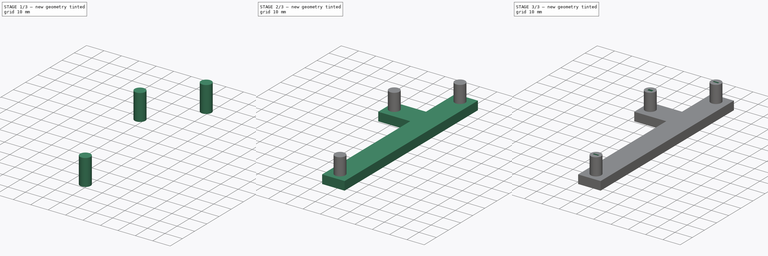
[diagram: build sequence overview — one tinted view per stage of 3, left to right]
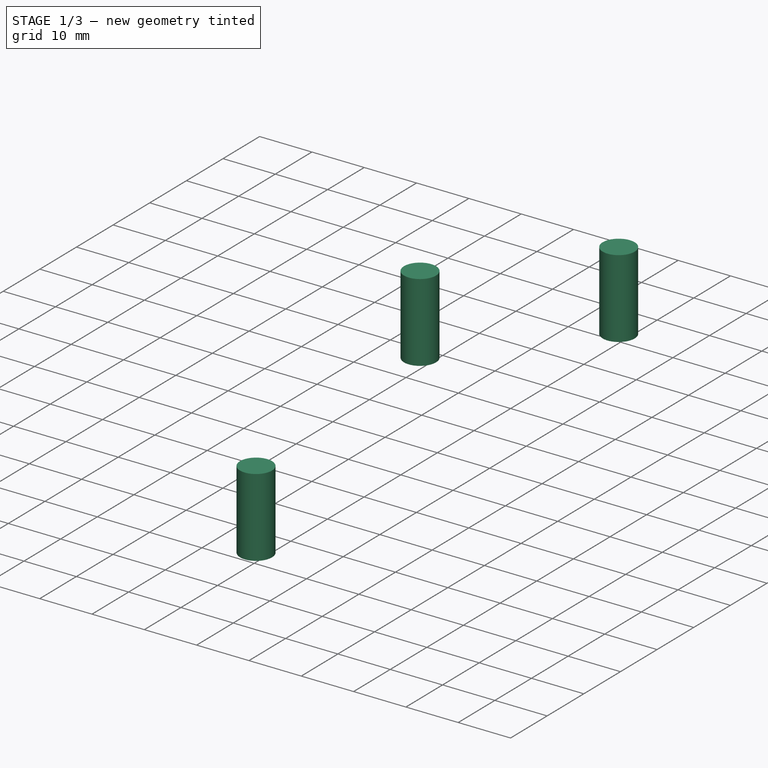
[diagram: stage 1 of 3 — iso view after this stage's code; geometry added in this stage tinted green]
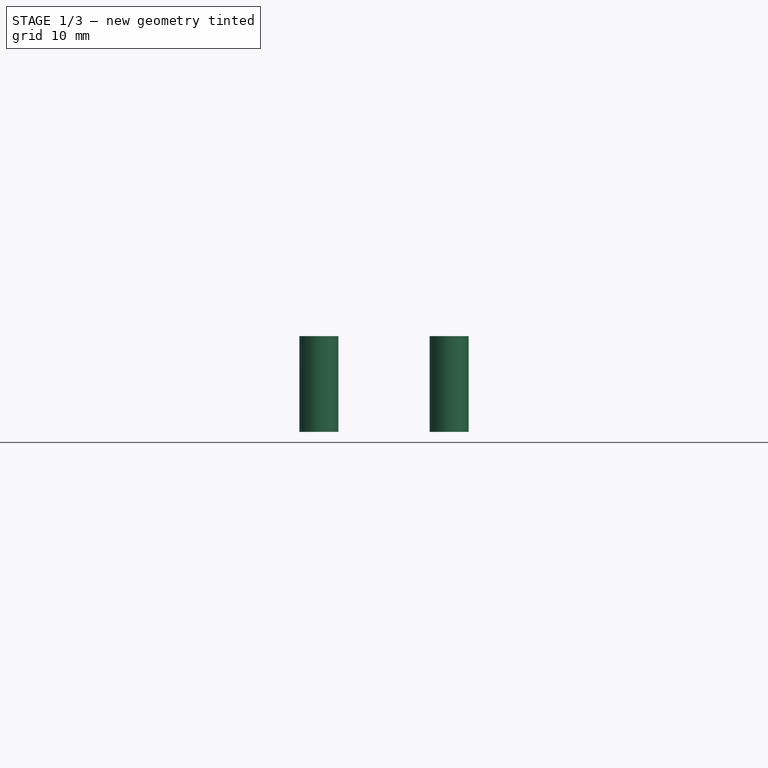
[diagram: stage 1 of 3 — front view after this stage's code; geometry added in this stage tinted green]
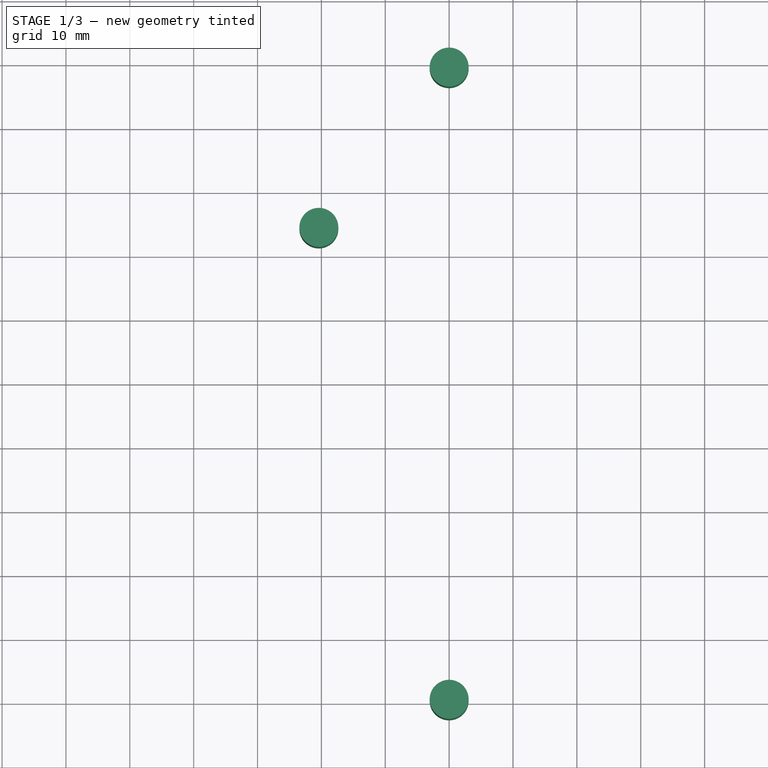
[diagram: stage 1 of 3 — top view after this stage's code; geometry added in this stage tinted green]
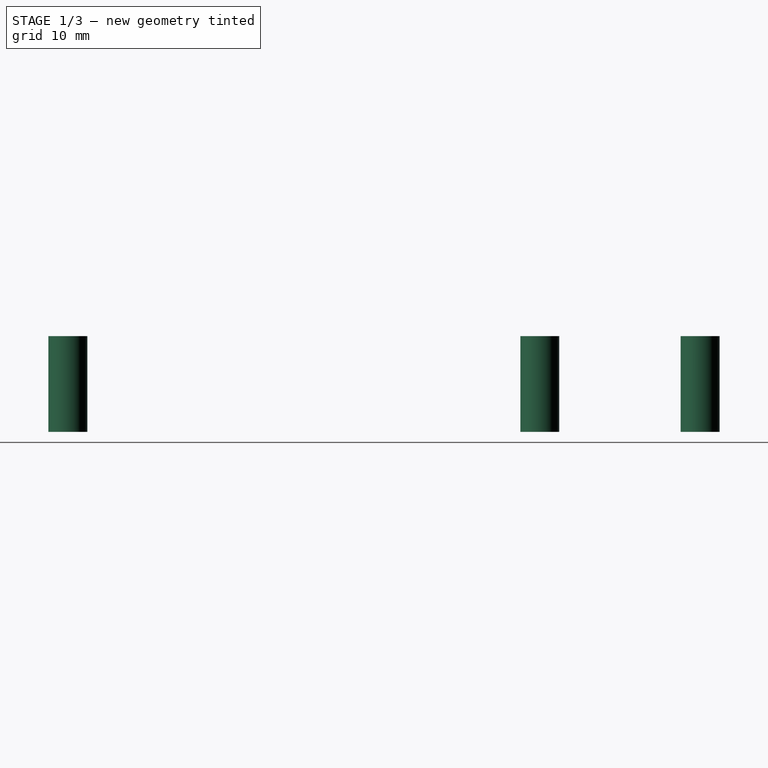
[diagram: stage 1 of 3 — right view after this stage's code; geometry added in this stage tinted green]
FCSTD DOCUMENT  (FreeCAD 0.16R6712 (Git))
Label: Oblig1_opp3
License: All rights reserved
LicenseURL: http://en.wikipedia.org/wiki/All_rights_reserved
objects: Sketcher::SketchObject×3, PartDesign::Pad×3, Part::Cylinder×3, Spreadsheet::Sheet×1, Part::MultiFuse×1, Part::Cut×1
note: 14 computed .brp shape members not serialized (recipe doc carries the construction recipe); baked Part::Feature solids carry a one-line shape summary decoded from their .brp

FEATURE [Part::Cylinder] Cylinder  label="cylinder_plug_1"
  Angle = 360
  Height = 15
  Placement = pos=(0,-0.5,0) rot=(0,0,1;0rad)
  Radius = 3.05
  expr: Height = Spreadsheet001.height_connection_tubes
  expr: Radius = Spreadsheet001.radius_connection_tubes
  expr: Placement.Base.y = Spreadsheet001.position_connection_tube_1_y
FEATURE [Part::Cylinder] Cylinder001  label="cylinder_plug_3"
  Angle = 360
  Height = 15
  Placement = pos=(0,-99.5,0) rot=(0,0,1;0rad)
  Radius = 3.05
  expr: Radius = Spreadsheet001.radius_connection_tubes
  expr: Height = Spreadsheet001.height_connection_tubes
  expr: Placement.Base.y = Spreadsheet001.position_connection_tube_3_y
FEATURE [Part::Cylinder] Cylinder002  label="cylinder_plug_2"
  Angle = 360
  Height = 15
  Placement = pos=(-20.4,-25.6,0) rot=(0,0,1;0rad)
  Radius = 3.05
  expr: Radius = Spreadsheet001.radius_connection_tubes
  expr: Height = Spreadsheet001.height_connection_tubes
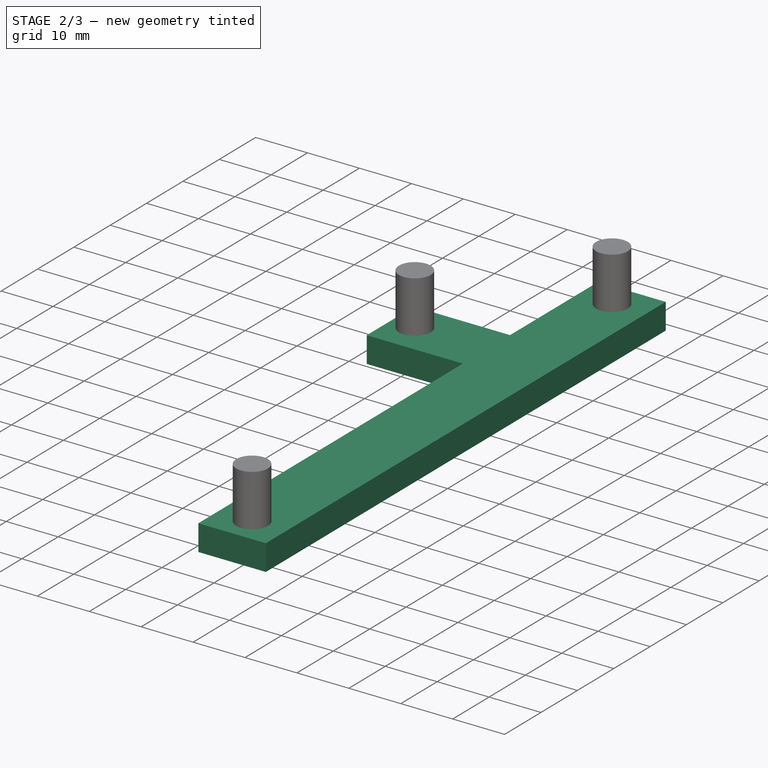
[diagram: stage 2 of 3 — iso view after this stage's code; geometry added in this stage tinted green]
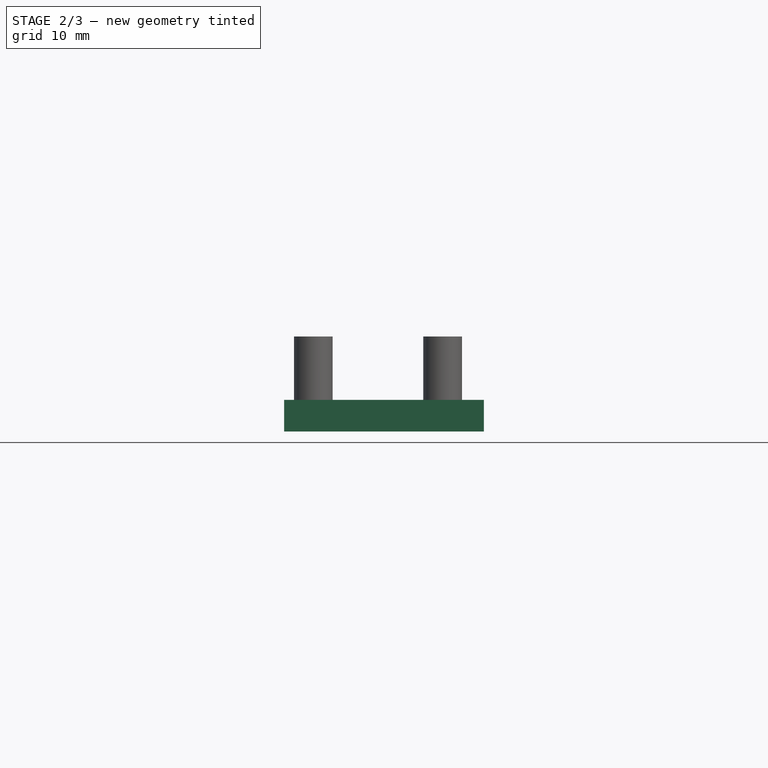
[diagram: stage 2 of 3 — front view after this stage's code; geometry added in this stage tinted green]
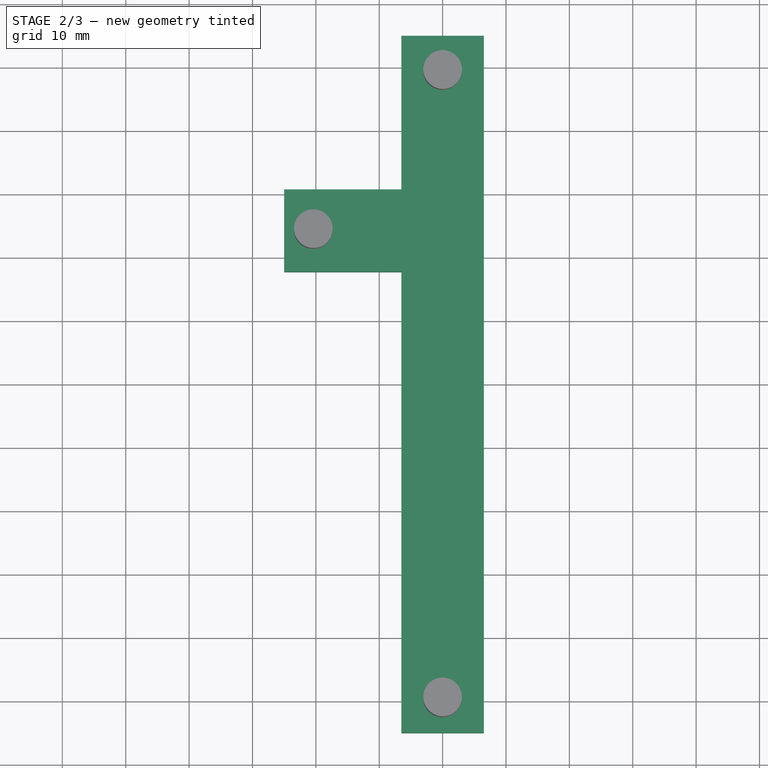
[diagram: stage 2 of 3 — top view after this stage's code; geometry added in this stage tinted green]
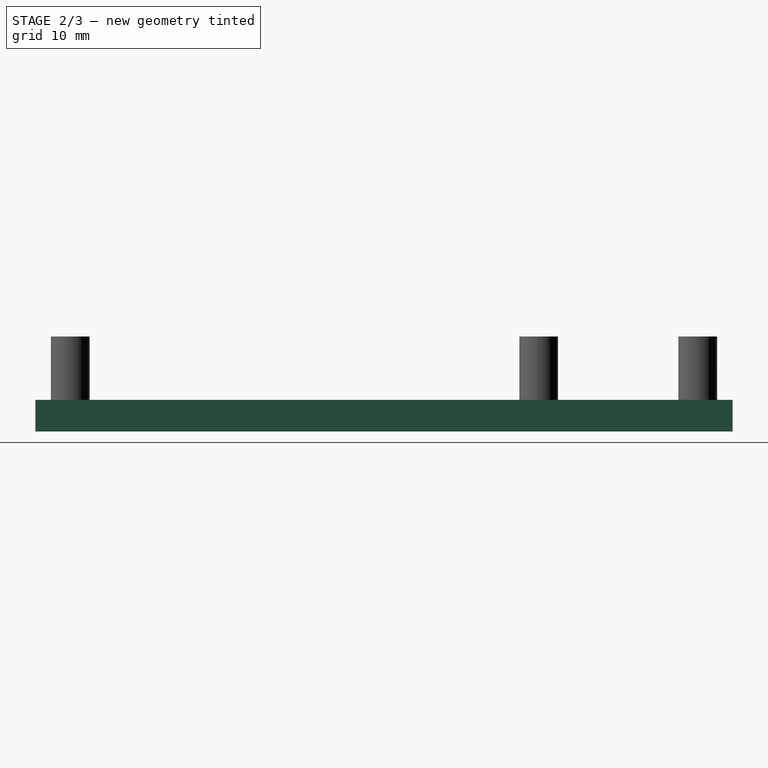
[diagram: stage 2 of 3 — right view after this stage's code; geometry added in this stage tinted green]
FEATURE [Sketcher::SketchObject] Sketch002  label="base_medium"
  expr: Constraints[25] = Spreadsheet001.width_medium_around_channel
  expr: Constraints[26] = Spreadsheet001.total_length_along_main_channel
  expr: Constraints[24] = Spreadsheet001.width_medium_around_channel
  sketch-geometry (10):
    g0: LineSegment StartX=-6.5 StartY=5 StartZ=0 EndX=6.5 EndY=5 EndZ=0
    g1: LineSegment StartX=6.5 StartY=5 StartZ=0 EndX=6.5 EndY=-105 EndZ=0
    g2: LineSegment StartX=6.5 StartY=-105 StartZ=0 EndX=-6.5 EndY=-105 EndZ=0
    g3: LineSegment StartX=-6.5 StartY=-32.25 StartZ=0 EndX=-25 EndY=-32.25 EndZ=0
    g4: LineSegment StartX=-25 StartY=-32.25 StartZ=0 EndX=-25 EndY=-19.25 EndZ=0
    g5: LineSegment StartX=-25 StartY=-19.25 StartZ=0 EndX=-6.5 EndY=-19.25 EndZ=0
    g6: LineSegment StartX=-6.5 StartY=-19.25 StartZ=0 EndX=-6.5 EndY=5 EndZ=0
    g7: GeomPoint [constr] X=-25 Y=-25.75 Z=0
    g8: LineSegment StartX=-6.5 StartY=-105 StartZ=0 EndX=-6.5 EndY=-32.25 EndZ=0
    g9: GeomPoint [constr] X=0 Y=5 Z=0
  constraints (27):
    c: Horizontal(g0)
    c: Coincident(g1,g0)
    c: Vertical(g1)
    c: Coincident(g2,g1)
    c: Horizontal(g2)
    c: Horizontal(g3)
    c: Vertical(g4)
    c: Horizontal(g5)
    c: Coincident(g6,g0)
    c: Vertical(g6)
    c: Coincident(g5,g6)
    c: DistanceY(g-1,g0) = 5
    c: PointOnObject(g7,g4)
    c: Symmetric(g4,g3,g7)
    c: DistanceX(g7,g-1) = 25
    c: Coincident(g4,g5)
    c: Coincident(g3,g4)
    c: Vertical(g8)
    c: Coincident(g8,g3)
    c: Coincident(g8,g2)
    c: Symmetric(g0,g0,g9)
    c: PointOnObject(g9,g-2)
    c: Equal(g0,g4)
    c: DistanceY(g6,g6) = 24.25
    c: Distance(g0) = 13
    c: Distance(g2) = 13
    c: Distance(g1) = 110
FEATURE [PartDesign::Pad] Pad002  label="volume_medium"
  Length = 5
  Length2 = 100
  Sketch = -> Sketch002
  Type = 0
  expr: Length = Spreadsheet001.height_box
FEATURE [Part::MultiFuse] Fusion  label="material_volume"
  Shapes = -> [Cylinder001,Cylinder,Cylinder002,Pad002]
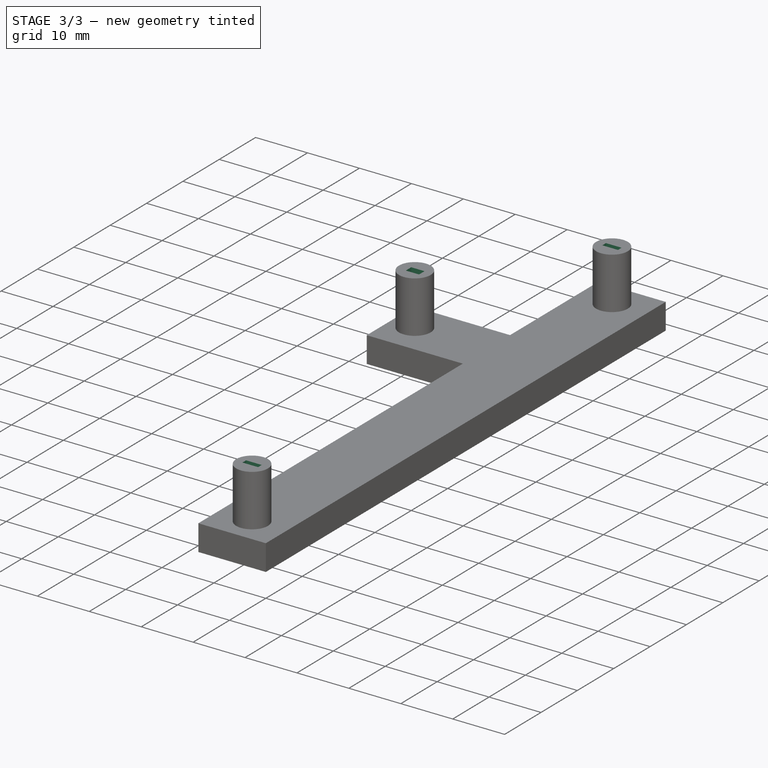
[diagram: stage 3 of 3 — iso view after this stage's code; geometry added in this stage tinted green]
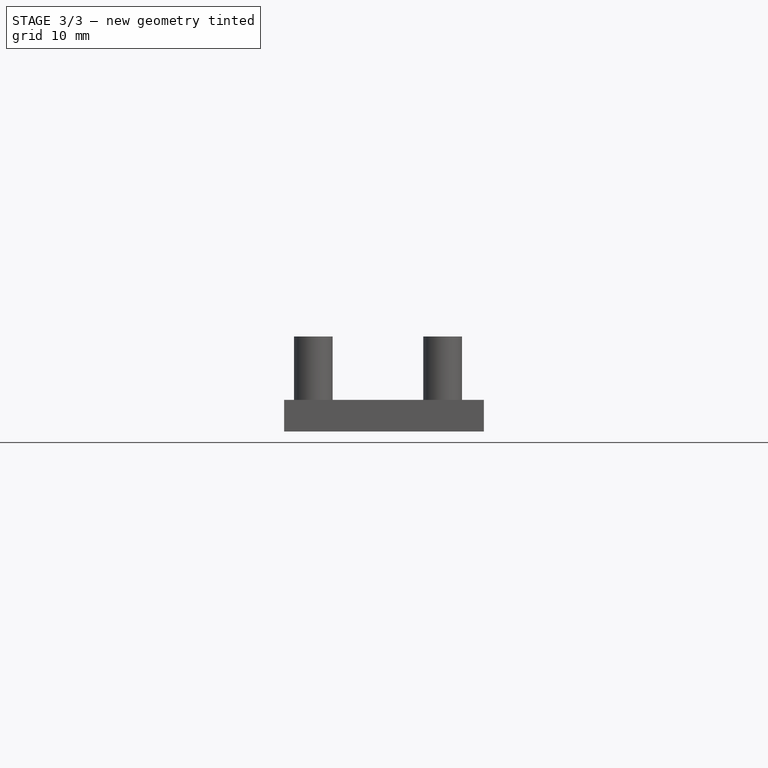
[diagram: stage 3 of 3 — front view after this stage's code; geometry added in this stage tinted green]
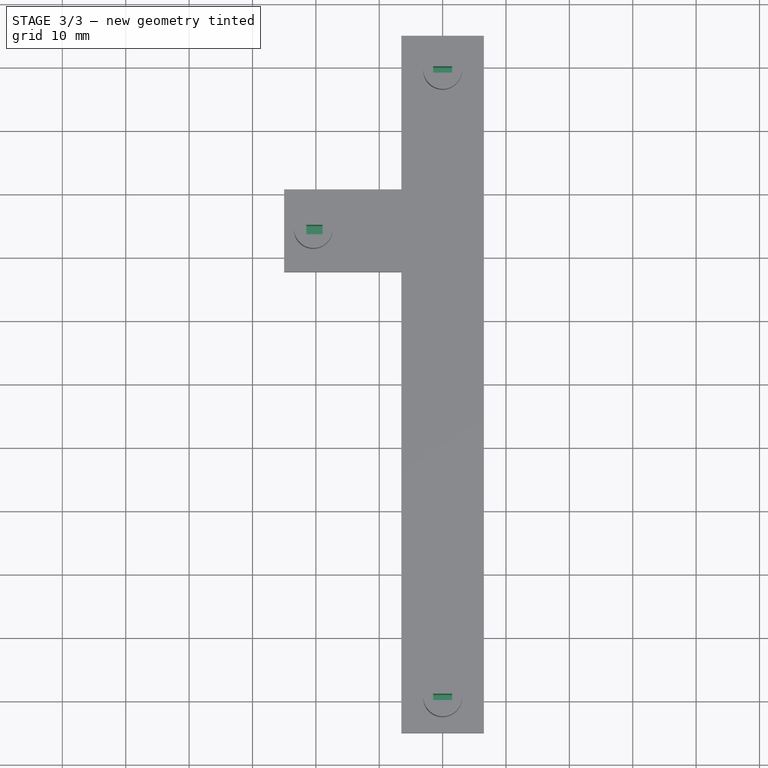
[diagram: stage 3 of 3 — top view after this stage's code; geometry added in this stage tinted green]
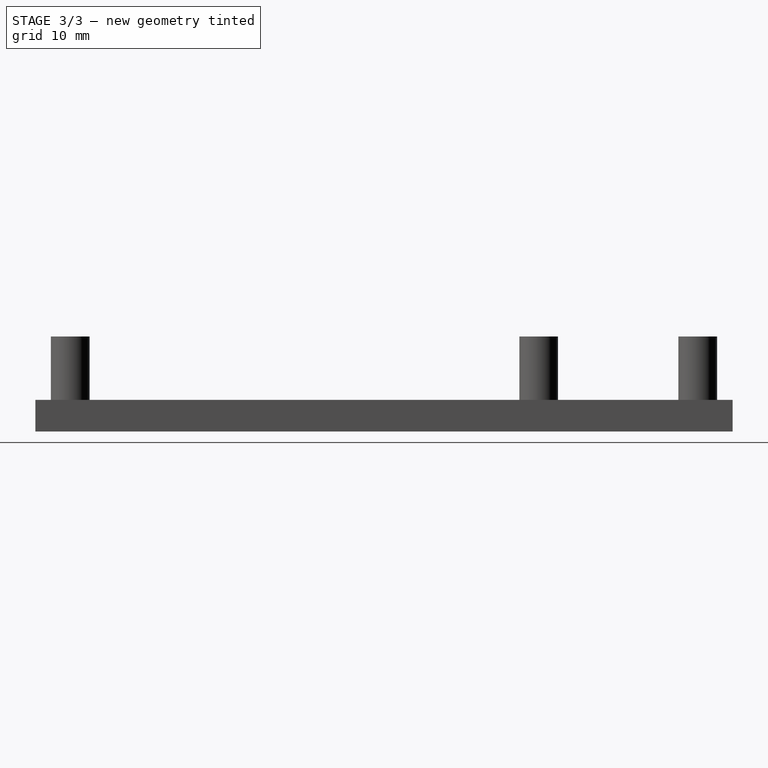
[diagram: stage 3 of 3 — right view after this stage's code; geometry added in this stage tinted green]
FEATURE [Spreadsheet::Sheet] Spreadsheet001
  cells = B2=Data for construction of the T-Junction; E2=Data for sketches; B3=(design data to be set by hand); E3=(derived quantities computed automatically); B5=width_main_channel; C5(width_main_channel)==3mm; E5=min_position_z_channel; F5(min_position_z_channel)==(C8 - C7) / 2; B6=width_lateral_channel; C6(width_lateral_channel)==1.5mm; E6=total_height_top_channel_connections; F6(total_height_top_channel_connections)==20mm; B7=height_channel; C7(height_channel)==1mm; E7=total_length_along main_channel; F7(total_length_along_main_channel)==110mm; B8=height_box; C8(height_box)==5mm; E8=total_length_along_side_channel; F8(total_length_along_side_channel)==25mm; B9=length_main_channel; C9(length_main_channel)==100mm; E9=position_connection_tube_1_y; F9(position_connection_tube_1_y)==-0.5mm; B10=length_side_channel; C10(length_side_channel)==20mm; E10=position_connection_tube_2_x; F10(position_connection_tube_2_x)==-21mm; B11=position_lateral_channel; C11(position_lateral_channel)==18mm; E11=position_connection_tube_2_y; F11(position_connection_tube_2_y)==-18.75mm; B12=width_medium_around_channel; C12(width_medium_around_channel)==13mm; E12=position_connection_tube_3_y; F12(position_connection_tube_3_y)==-99.5mm; B13=margin_at_extremeities_channel; C13(margin_at_extremeities_channel)==5mm; B14=height_connection_tubes; C14(height_connection_tubes)==15mm; B15=radius_connection tubes; C15(radius_connection_tubes)==3.05mm; B16=margin; C16(margin)==5mm
FEATURE [Sketcher::SketchObject] Sketch  label="channel_base"
  Placement = pos=(0,0,2) rot=(0,0,1;0rad)
  expr: Placement.Base.z = Spreadsheet001.min_position_z_channel
  expr: Constraints[23] = Spreadsheet001.length_main_channel
  expr: Constraints[22] = Spreadsheet001.width_main_channel
  sketch-geometry (8):
    g0: LineSegment StartX=-1.5 StartY=0 StartZ=0 EndX=1.5 EndY=0 EndZ=0
    g1: LineSegment StartX=1.5 StartY=0 StartZ=0 EndX=1.5 EndY=-100 EndZ=0
    g2: LineSegment StartX=1.5 StartY=-100 StartZ=0 EndX=-1.5 EndY=-100 EndZ=0
    g3: LineSegment StartX=-1.5 StartY=-26.5 StartZ=0 EndX=-1.5 EndY=-100 EndZ=0
    g4: LineSegment StartX=-1.5 StartY=-26.5 StartZ=0 EndX=-21.5 EndY=-26.5 EndZ=0
    g5: LineSegment StartX=-21.5 StartY=-25 StartZ=0 EndX=-21.5 EndY=-26.5 EndZ=0
    g6: LineSegment StartX=-21.5 StartY=-25 StartZ=0 EndX=-1.5 EndY=-25 EndZ=0
    g7: LineSegment StartX=-1.5 StartY=-25 StartZ=0 EndX=-1.5 EndY=0 EndZ=0
  constraints (24):
    c: PointOnObject(g0,g-1)
    c: PointOnObject(g0,g-1)
    c: Coincident(g1,g0)
    c: Vertical(g1)
    c: Coincident(g2,g1)
    c: Horizontal(g2)
    c: Coincident(g3,g2)
    c: Vertical(g3)
    c: Coincident(g4,g3)
    c: Horizontal(g4)
    c: Coincident(g5,g4)
    c: Coincident(g6,g5)
    c: Horizontal(g6)
    c: Coincident(g7,g6)
    c: Coincident(g7,g0)
    c: Vertical(g5)
    c: Vertical(g7)
    c: Equal(g0,g2)
    c: Symmetric(g0,g0,g-1)
    c: DistanceY(g5,g5) = 1.5
    c: DistanceY(g7,g7) = 25
    c: Distance(g4) = 20
    c: Distance(g0) = 3
    c: Distance(g1) = 100
FEATURE [PartDesign::Pad] Pad  label="channels_base_volume"
  Length = 1
  Length2 = 100
  Placement = pos=(0,0,2) rot=(0,0,1;0rad)
  Sketch = -> Sketch
  Type = 0
  expr: Length = Spreadsheet001.height_channel
FEATURE [Sketcher::SketchObject] Sketch001  label="channels_connection_base"
  Placement = pos=(0,0,3) rot=(0,0,1;0rad)
  Support = -> Pad [Face10]
  sketch-geometry (12):
    g0: LineSegment StartX=1.5 StartY=0 StartZ=0 EndX=1.5 EndY=-1 EndZ=0
    g1: LineSegment StartX=-1.5 StartY=0 StartZ=0 EndX=-1.5 EndY=-1 EndZ=0
    g2: LineSegment StartX=-1.5 StartY=-1 StartZ=0 EndX=1.5 EndY=-1 EndZ=0
    g3: LineSegment StartX=1.5 StartY=0 StartZ=0 EndX=-1.5 EndY=0 EndZ=0
    g4: LineSegment StartX=1.50769 StartY=-98.9933 StartZ=0 EndX=1.50769 EndY=-99.9933 EndZ=0
    g5: LineSegment StartX=-1.50464 StartY=-98.9933 StartZ=0 EndX=-1.50464 EndY=-99.9933 EndZ=0
    g6: LineSegment StartX=-1.50464 StartY=-99.9933 StartZ=0 EndX=1.50769 EndY=-99.9933 EndZ=0
    g7: LineSegment StartX=1.50769 StartY=-98.9933 StartZ=0 EndX=-1.50464 EndY=-98.9933 EndZ=0
    g8: LineSegment StartX=-21.5 StartY=-25.007 StartZ=0 EndX=-18.9465 EndY=-25.007 EndZ=0
    g9: LineSegment StartX=-21.5 StartY=-26.507 StartZ=0 EndX=-18.9465 EndY=-26.507 EndZ=0
    g10: LineSegment StartX=-18.9465 StartY=-25.007 StartZ=0 EndX=-18.9465 EndY=-26.507 EndZ=0
    g11: LineSegment StartX=-21.5 StartY=-25.007 StartZ=0 EndX=-21.5 EndY=-26.507 EndZ=0
  constraints (30):
    c: Vertical(g0)
    c: Vertical(g1)
    c: Coincident(g2,g1)
    c: Coincident(g2,g0)
    c: Horizontal(g2)
    c: Coincident(g3,g0)
    c: Coincident(g3,g1)
    c: Horizontal(g3)
    c: DistanceY(g0,g0) = 1
    c: Equal(g1,g0)
    c: Vertical(g4)
    c: Vertical(g5)
    c: Coincident(g6,g5)
    c: Coincident(g6,g4)
    c: Horizontal(g6)
    c: Coincident(g7,g4)
    c: Coincident(g7,g5)
    c: Horizontal(g7)
    c: Equal(g0,g4) = 1
    c: Equal(g5,g4)
    c: Horizontal(g8)
    c: Horizontal(g9)
    c: Coincident(g10,g8)
    c: Coincident(g10,g9)
    c: Vertical(g10)
    c: Coincident(g11,g8)
    c: Coincident(g11,g9)
    c: Vertical(g11)
    c: Equal(g10,g11)
    c: DistanceY(g10,g10) = 1.5
FEATURE [PartDesign::Pad] Pad001  label="channels_with_connection"
  Length = 20
  Length2 = 100
  Placement = pos=(0,0,2) rot=(0,0,1;0rad)
  Sketch = -> Sketch001
  Type = 0
  expr: Length = Spreadsheet001.total_height_top_channel_connections
FEATURE [Part::Cut] Cut  label="t_junction"
  Base = -> Fusion
  Tool = -> Pad001
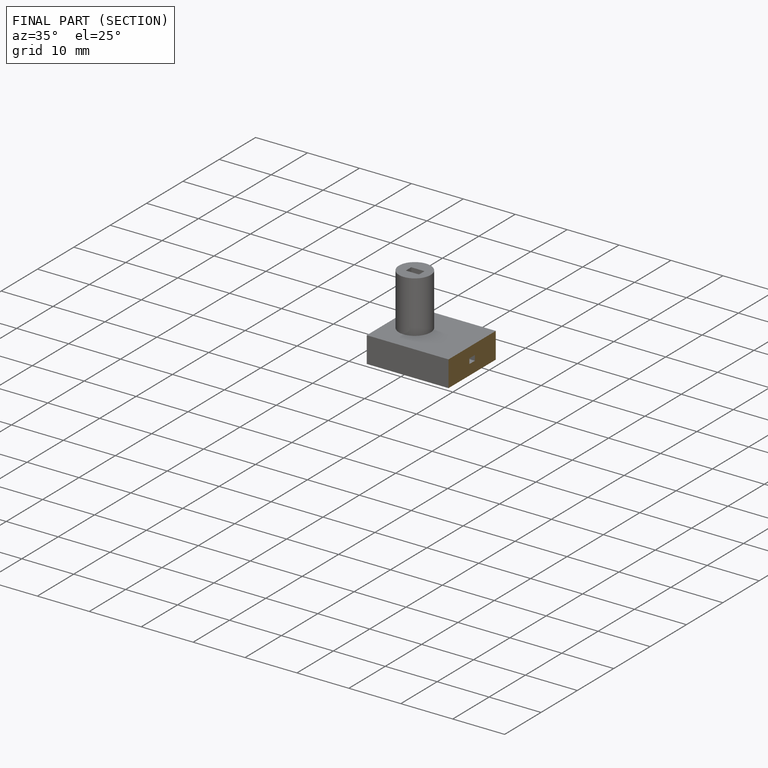
[diagram: finished part — half-section view (interior)]
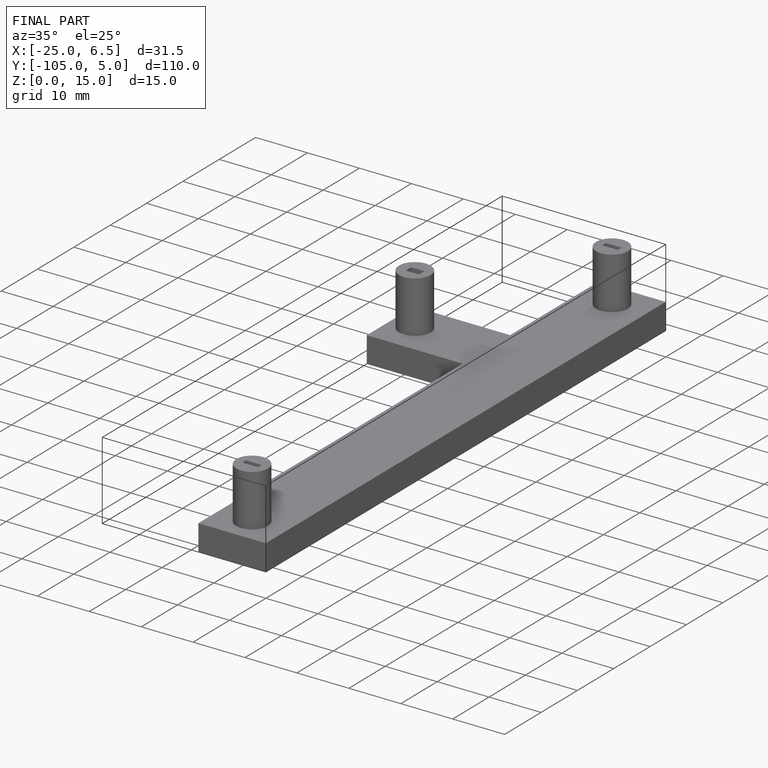
[diagram: finished part — iso view with bounding-box wireframe]
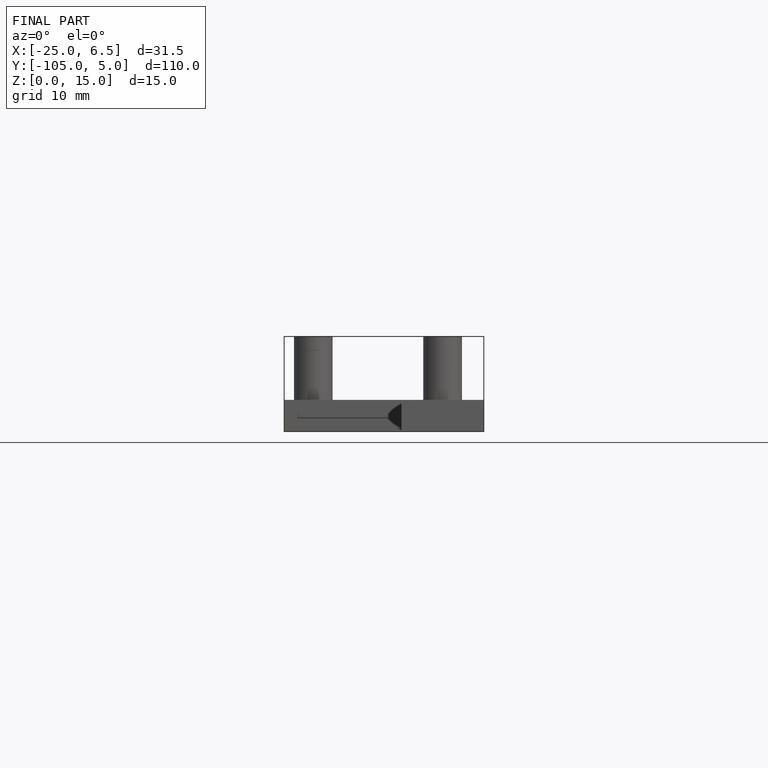
[diagram: finished part — front view with bounding-box wireframe]
